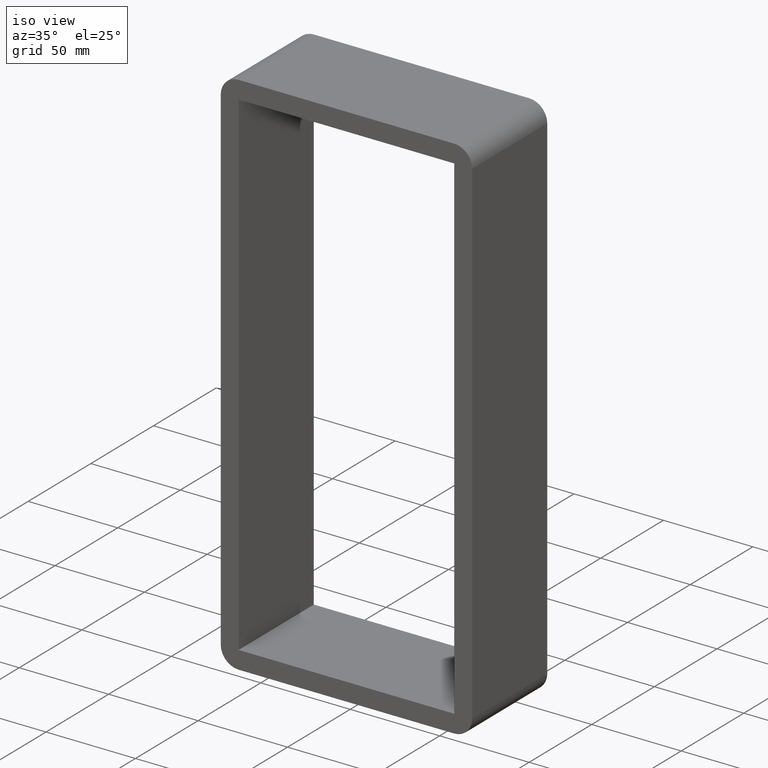
[diagram: clean part render]
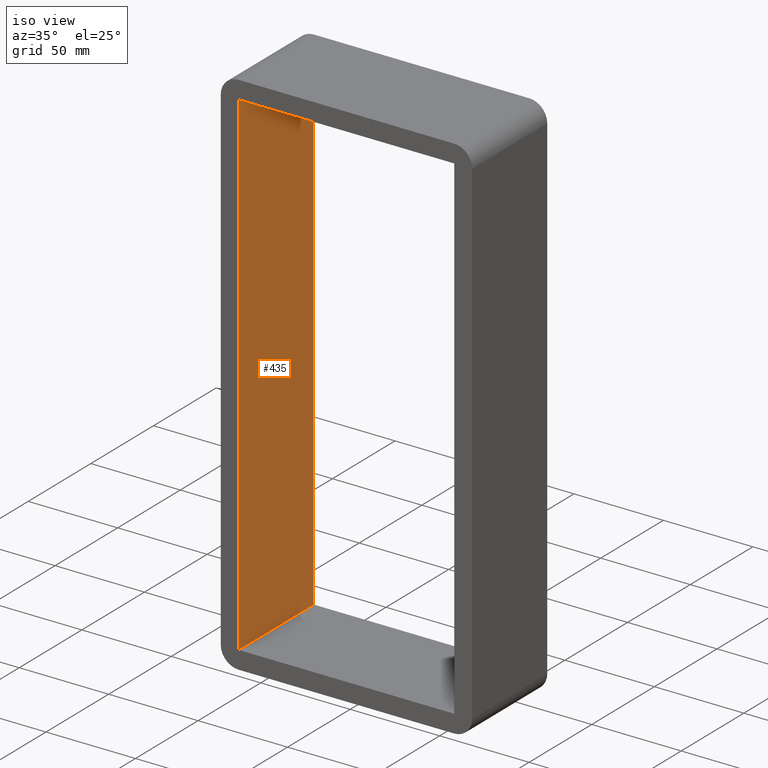
[diagram: same view with one face highlighted and labeled with its STEP entity id]
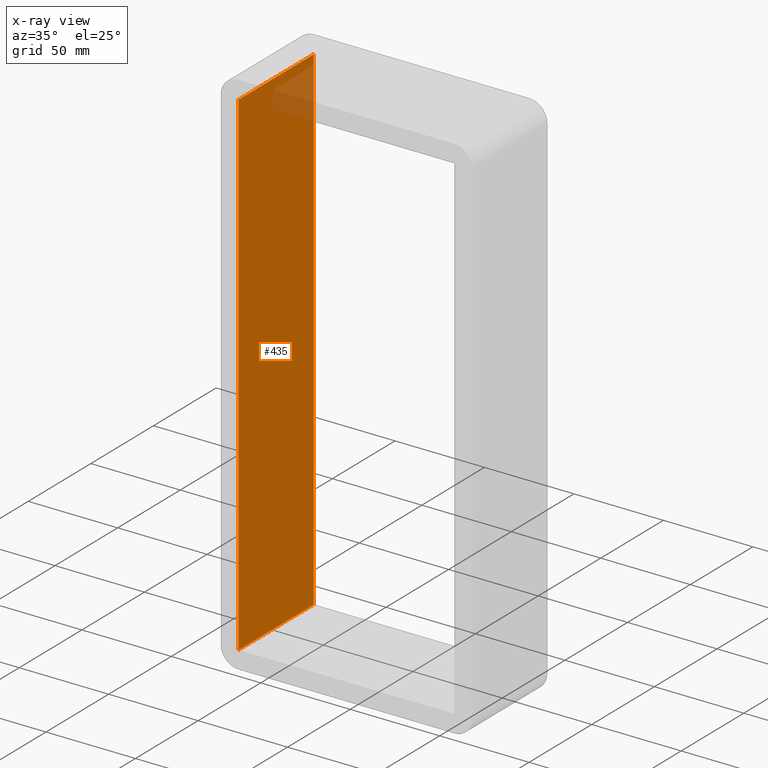
[diagram: x-ray of the same camera — body ghosted, the highlighted face saturated]
A machine part, iso view. The second image highlights one B-rep face of the part: STEP entity #435.
The next image is the same camera in x-ray: the body ghosted, the highlighted face saturated — about 4% of this face is hidden behind the body in this view.
In plain terms, the highlighted planar face has unit normal (-1, 0, 0).
Its self-contained STEP definition (entity closure, byte-faithful):
#185=CARTESIAN_POINT('',(-60.25,-3.0,-139.0));
#186=VERTEX_POINT('',#185);
#193=CARTESIAN_POINT('',(-60.25,-3.0,138.99999999999997));
#194=VERTEX_POINT('',#193);
#195=CARTESIAN_POINT('',(-60.25,-3.0,-139.0));
#196=DIRECTION('',(0.0,0.0,1.0));
#197=VECTOR('',#196,277.99999999999994);
#198=LINE('',#195,#197);
#199=EDGE_CURVE('',#186,#194,#198,.T.);
#395=CARTESIAN_POINT('',(-60.25,57.0,138.99999999999997));
#396=VERTEX_POINT('',#395);
#397=CARTESIAN_POINT('',(-60.25,-3.0,139.0));
#398=DIRECTION('',(0.0,1.0,0.0));
#399=VECTOR('',#398,60.0);
#400=LINE('',#397,#399);
#401=EDGE_CURVE('',#194,#396,#400,.T.);
#412=CARTESIAN_POINT('',(-60.25,0.0,-139.0));
#413=DIRECTION('',(-1.0,0.0,0.0));
#414=DIRECTION('',(0.0,0.0,1.0));
#415=AXIS2_PLACEMENT_3D('',#412,#413,#414);
#416=PLANE('',#415);
#417=ORIENTED_EDGE('',*,*,#401,.F.);
#418=ORIENTED_EDGE('',*,*,#199,.F.);
#419=CARTESIAN_POINT('',(-60.25,57.0,-139.0));
#420=VERTEX_POINT('',#419);
#421=CARTESIAN_POINT('',(-60.25,-3.0,-139.0));
#422=DIRECTION('',(0.0,1.0,0.0));
#423=VECTOR('',#422,60.0);
#424=LINE('',#421,#423);
#425=EDGE_CURVE('',#186,#420,#424,.T.);
#426=ORIENTED_EDGE('',*,*,#425,.T.);
#427=CARTESIAN_POINT('',(-60.25,57.0,138.99999999999994));
#428=DIRECTION('',(0.0,0.0,-1.0));
#429=VECTOR('',#428,277.99999999999994);
#430=LINE('',#427,#429);
#431=EDGE_CURVE('',#396,#420,#430,.T.);
#432=ORIENTED_EDGE('',*,*,#431,.F.);
#433=EDGE_LOOP('',(#417,#418,#426,#432));
#434=FACE_OUTER_BOUND('',#433,.T.);
#435=ADVANCED_FACE('',(#434),#416,.F.);